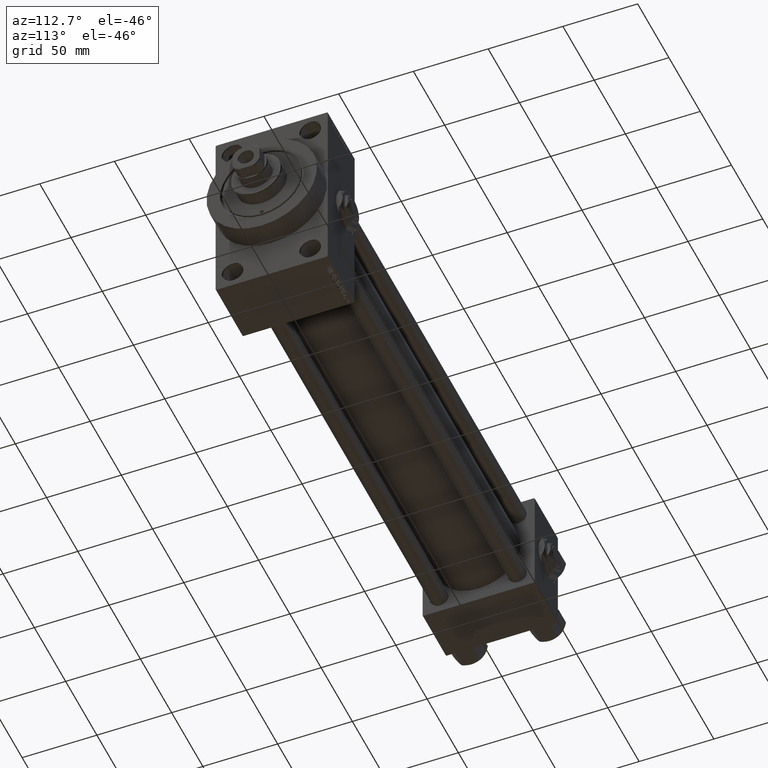
[diagram: clean part render]
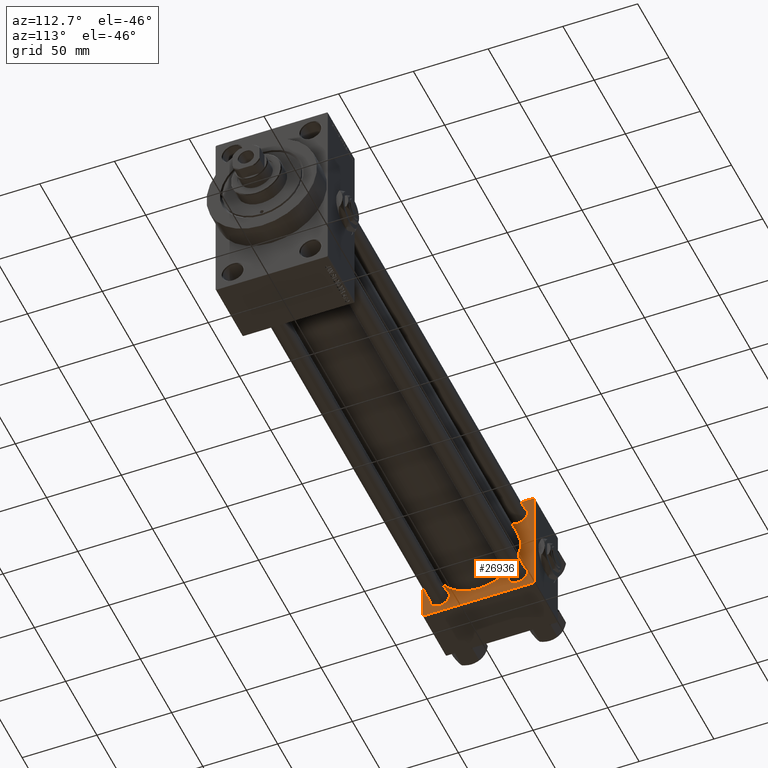
[diagram: same view with one face highlighted and labeled with its STEP entity id]
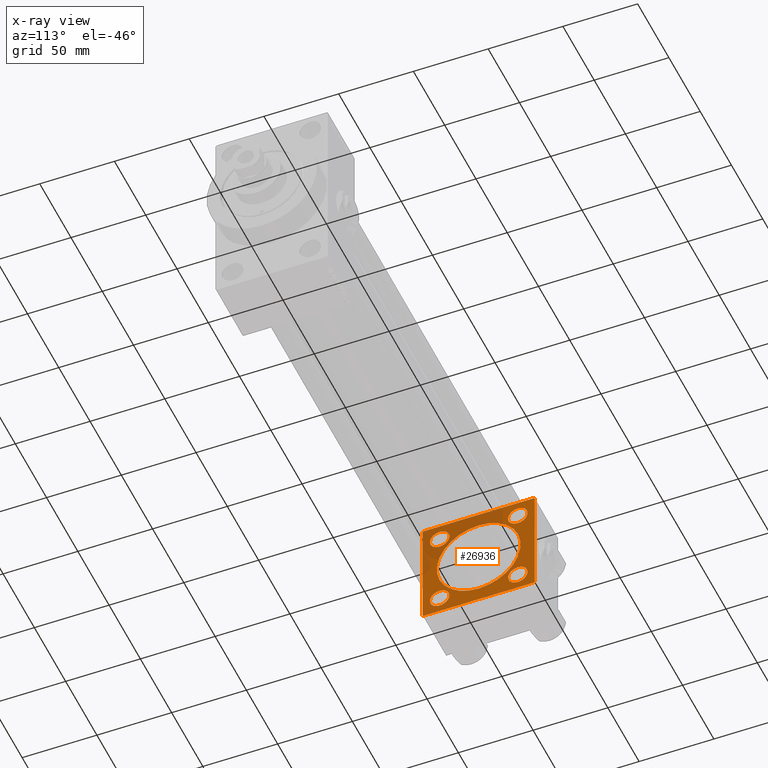
[diagram: x-ray of the same camera — body ghosted, the highlighted face saturated]
A machine part, auxiliary view. The second image highlights one B-rep face of the part: STEP entity #26936.
The next image is the same camera in x-ray: the body ghosted, the highlighted face saturated — about 29% of this face is hidden behind the body in this view.
In plain terms, the highlighted planar face has unit normal (-1, 0, 0).
Its self-contained STEP definition (entity closure, byte-faithful):
#57 = DIRECTION ( 'NONE',  ( 0.000000000000000000, 0.000000000000000000, 1.000000000000000000 ) ) ;
#893 = ORIENTED_EDGE ( 'NONE', *, *, #25360, .F. ) ;
#1860 = VERTEX_POINT ( 'NONE', #23642 ) ;
#1937 = DIRECTION ( 'NONE',  ( -1.000000000000000000, 0.000000000000000000, -0.000000000000000000 ) ) ;
#1989 = ORIENTED_EDGE ( 'NONE', *, *, #44793, .T. ) ;
#2544 = CARTESIAN_POINT ( 'NONE',  ( 37.00000000000000000, 37.49999999999999289, 37.50000000000000000 ) ) ;
#2865 = VERTEX_POINT ( 'NONE', #8529 ) ;
#3831 = EDGE_CURVE ( 'NONE', #30850, #9727, #9661, .T. ) ;
#4075 = CARTESIAN_POINT ( 'NONE',  ( 37.00000000000000000, -26.14999999999999147, 26.15000000000000924 ) ) ;
#4430 = VECTOR ( 'NONE', #40956, 1000.000000000000114 ) ;
#4454 = CIRCLE ( 'NONE', #14026, 6.500000000000002665 ) ;
#4487 = ORIENTED_EDGE ( 'NONE', *, *, #31526, .T. ) ;
#5422 = AXIS2_PLACEMENT_3D ( 'NONE', #22507, #33800, #30531 ) ;
#5819 = CARTESIAN_POINT ( 'NONE',  ( 37.00000000000000000, 26.14999999999999858, -26.15000000000000213 ) ) ;
#6105 = LINE ( 'NONE', #28153, #22586 ) ;
#6529 = CARTESIAN_POINT ( 'NONE',  ( 36.99999999999997868, -2.602085213965210642E-15, 0.000000000000000000 ) ) ;
#7320 = CARTESIAN_POINT ( 'NONE',  ( 37.00000000000000000, -26.14999999999999147, 19.65000000000005542 ) ) ;
#7388 = EDGE_CURVE ( 'NONE', #8666, #44347, #11158, .T. ) ;
#7998 = VERTEX_POINT ( 'NONE', #23467 ) ;
#8187 = VECTOR ( 'NONE', #25564, 1000.000000000000000 ) ;
#8285 = EDGE_CURVE ( 'NONE', #46001, #16302, #22895, .T. ) ;
#8529 = CARTESIAN_POINT ( 'NONE',  ( 37.00000000000000000, -26.14999999999999147, -32.64999999999995595 ) ) ;
#8666 = VERTEX_POINT ( 'NONE', #31454 ) ;
#9084 = DIRECTION ( 'NONE',  ( 0.000000000000000000, 0.000000000000000000, 1.000000000000000000 ) ) ;
#9298 = AXIS2_PLACEMENT_3D ( 'NONE', #24190, #17174, #32468 ) ;
#9494 = LINE ( 'NONE', #11155, #47018 ) ;
#9661 = CIRCLE ( 'NONE', #28041, 6.500000000000002665 ) ;
#9727 = VERTEX_POINT ( 'NONE', #24709 ) ;
#9748 = DIRECTION ( 'NONE',  ( 0.000000000000000000, 0.7071067811865524577, -0.7071067811865426878 ) ) ;
#10099 = EDGE_CURVE ( 'NONE', #1860, #16544, #19321, .T. ) ;
#10182 = VERTEX_POINT ( 'NONE', #29849 ) ;
#10382 = CARTESIAN_POINT ( 'NONE',  ( 37.00000000000000000, 37.49999999999999289, -36.99999999999998579 ) ) ;
#10647 = FACE_BOUND ( 'NONE', #42132, .T. ) ;
#10958 = VERTEX_POINT ( 'NONE', #16908 ) ;
#11155 = CARTESIAN_POINT ( 'NONE',  ( 37.00000000000000000, -37.00000000000002132, -37.50000000000000711 ) ) ;
#11158 = LINE ( 'NONE', #29701, #19323 ) ;
#11807 = ORIENTED_EDGE ( 'NONE', *, *, #19476, .T. ) ;
#13083 = ORIENTED_EDGE ( 'NONE', *, *, #29799, .T. ) ;
#13148 = LINE ( 'NONE', #15471, #48784 ) ;
#13193 = VERTEX_POINT ( 'NONE', #7320 ) ;
#13979 = EDGE_LOOP ( 'NONE', ( #15008, #893 ) ) ;
#14026 = AXIS2_PLACEMENT_3D ( 'NONE', #33334, #48602, #26299 ) ;
#14145 = PLANE ( 'NONE',  #29289 ) ;
#14146 = CARTESIAN_POINT ( 'NONE',  ( 37.00000000000000000, 37.49999999999999289, -36.99999999999998579 ) ) ;
#14268 = DIRECTION ( 'NONE',  ( 0.000000000000000000, 0.000000000000000000, 1.000000000000000000 ) ) ;
#14302 = DIRECTION ( 'NONE',  ( 0.000000000000000000, 0.000000000000000000, 1.000000000000000000 ) ) ;
#14341 = ORIENTED_EDGE ( 'NONE', *, *, #18483, .T. ) ;
#15007 = AXIS2_PLACEMENT_3D ( 'NONE', #4075, #30381, #45665 ) ;
#15008 = ORIENTED_EDGE ( 'NONE', *, *, #48408, .F. ) ;
#15129 = CARTESIAN_POINT ( 'NONE',  ( 37.00000000000000000, 0.000000000000000000, 0.000000000000000000 ) ) ;
#15275 = LINE ( 'NONE', #15523, #48468 ) ;
#15471 = CARTESIAN_POINT ( 'NONE',  ( 37.00000000000000000, 37.49999999999999289, -37.50000000000000000 ) ) ;
#15523 = CARTESIAN_POINT ( 'NONE',  ( 37.00000000000000000, -37.50000000000000711, 37.49999999999999289 ) ) ;
#15795 = CIRCLE ( 'NONE', #5422, 6.499999999999953815 ) ;
#15998 = ORIENTED_EDGE ( 'NONE', *, *, #10099, .T. ) ;
#16302 = VERTEX_POINT ( 'NONE', #10382 ) ;
#16310 = ORIENTED_EDGE ( 'NONE', *, *, #37795, .T. ) ;
#16544 = VERTEX_POINT ( 'NONE', #41487 ) ;
#16908 = CARTESIAN_POINT ( 'NONE',  ( 36.99999999999997868, 8.269258236473784371E-16, -28.00000000000000000 ) ) ;
#17174 = DIRECTION ( 'NONE',  ( -1.000000000000000000, 0.000000000000000000, -0.000000000000000000 ) ) ;
#17947 = VERTEX_POINT ( 'NONE', #19238 ) ;
#17954 = CARTESIAN_POINT ( 'NONE',  ( 37.00000000000000000, -37.50000000000000000, -37.00000000000003553 ) ) ;
#18483 = EDGE_CURVE ( 'NONE', #10182, #16302, #48464, .T. ) ;
#18779 = DIRECTION ( 'NONE',  ( 1.000000000000000000, -0.000000000000000000, 0.000000000000000000 ) ) ;
#18794 = CARTESIAN_POINT ( 'NONE',  ( 37.00000000000000000, 26.14999999999999858, 32.65000000000001279 ) ) ;
#18895 = DIRECTION ( 'NONE',  ( -1.000000000000000000, 0.000000000000000000, -0.000000000000000000 ) ) ;
#19078 = EDGE_LOOP ( 'NONE', ( #44584, #39039 ) ) ;
#19238 = CARTESIAN_POINT ( 'NONE',  ( 37.00000000000000000, -37.50000000000000711, 36.99999999999999289 ) ) ;
#19246 = AXIS2_PLACEMENT_3D ( 'NONE', #41117, #26326, #14302 ) ;
#19294 = CARTESIAN_POINT ( 'NONE',  ( 36.99999999999997868, -2.602085213965210642E-15, 0.000000000000000000 ) ) ;
#19321 = CIRCLE ( 'NONE', #47336, 6.500000000000002665 ) ;
#19323 = VECTOR ( 'NONE', #25693, 1000.000000000000000 ) ;
#19476 = EDGE_CURVE ( 'NONE', #2865, #7998, #30068, .T. ) ;
#19496 = CARTESIAN_POINT ( 'NONE',  ( 37.00000000000000000, -37.00000000000000711, 37.49999999999999289 ) ) ;
#19841 = EDGE_CURVE ( 'NONE', #17947, #30066, #15275, .T. ) ;
#20485 = LINE ( 'NONE', #31544, #23362 ) ;
#21122 = ORIENTED_EDGE ( 'NONE', *, *, #30980, .T. ) ;
#21186 = DIRECTION ( 'NONE',  ( 0.000000000000000000, 0.000000000000000000, 1.000000000000000000 ) ) ;
#21355 = DIRECTION ( 'NONE',  ( -0.000000000000000000, -0.7071067811865474617, -0.7071067811865474617 ) ) ;
#21495 = EDGE_LOOP ( 'NONE', ( #15998, #33377 ) ) ;
#21907 = FACE_BOUND ( 'NONE', #13979, .T. ) ;
#21973 = ORIENTED_EDGE ( 'NONE', *, *, #7388, .T. ) ;
#22507 = CARTESIAN_POINT ( 'NONE',  ( 37.00000000000000000, -26.14999999999999147, 26.15000000000000924 ) ) ;
#22586 = VECTOR ( 'NONE', #21355, 1000.000000000000114 ) ;
#22641 = EDGE_CURVE ( 'NONE', #16544, #1860, #4454, .T. ) ;
#22895 = LINE ( 'NONE', #2544, #8187 ) ;
#23056 = DIRECTION ( 'NONE',  ( -1.000000000000000000, 0.000000000000000000, -0.000000000000000000 ) ) ;
#23362 = VECTOR ( 'NONE', #32034, 1000.000000000000114 ) ;
#23467 = CARTESIAN_POINT ( 'NONE',  ( 37.00000000000000000, -26.14999999999999147, -19.65000000000006253 ) ) ;
#23642 = CARTESIAN_POINT ( 'NONE',  ( 37.00000000000000000, 26.14999999999999858, -32.65000000000000568 ) ) ;
#23729 = DIRECTION ( 'NONE',  ( 0.000000000000000000, -1.000000000000000000, -9.251858538542972814E-17 ) ) ;
#24190 = CARTESIAN_POINT ( 'NONE',  ( 37.00000000000000000, 26.14999999999999858, 26.15000000000000213 ) ) ;
#24709 = CARTESIAN_POINT ( 'NONE',  ( 37.00000000000000000, 26.14999999999999858, 19.64999999999999858 ) ) ;
#24777 = CARTESIAN_POINT ( 'NONE',  ( 37.00000000000000000, -26.14999999999999147, 32.64999999999996305 ) ) ;
#25316 = CIRCLE ( 'NONE', #30153, 28.00000000000000000 ) ;
#25360 = EDGE_CURVE ( 'NONE', #10958, #43973, #25316, .T. ) ;
#25432 = CARTESIAN_POINT ( 'NONE',  ( 37.00000000000000000, 37.49999999999999289, 37.00000000000000000 ) ) ;
#25564 = DIRECTION ( 'NONE',  ( 0.000000000000000000, 0.000000000000000000, -1.000000000000000000 ) ) ;
#25693 = DIRECTION ( 'NONE',  ( 0.000000000000000000, -1.000000000000000000, -9.251858538542971581E-17 ) ) ;
#25923 = DIRECTION ( 'NONE',  ( -0.000000000000000000, 0.000000000000000000, 1.000000000000000000 ) ) ;
#26105 = CIRCLE ( 'NONE', #9298, 6.500000000000002665 ) ;
#26299 = DIRECTION ( 'NONE',  ( 0.000000000000000000, 0.000000000000000000, 1.000000000000000000 ) ) ;
#26326 = DIRECTION ( 'NONE',  ( -1.000000000000000000, 0.000000000000000000, -0.000000000000000000 ) ) ;
#26932 = EDGE_CURVE ( 'NONE', #9727, #30850, #26105, .T. ) ;
#26936 = ADVANCED_FACE ( 'NONE', ( #47735, #41693, #10647, #44713, #21907, #49447 ), #14145, .F. ) ;
#28041 = AXIS2_PLACEMENT_3D ( 'NONE', #34359, #23056, #57 ) ;
#28153 = CARTESIAN_POINT ( 'NONE',  ( 37.00000000000000000, -37.50000000000000711, 36.99999999999999289 ) ) ;
#29143 = CIRCLE ( 'NONE', #35552, 28.00000000000000000 ) ;
#29289 = AXIS2_PLACEMENT_3D ( 'NONE', #15129, #18895, #25923 ) ;
#29701 = CARTESIAN_POINT ( 'NONE',  ( 37.00000000000000000, 37.49999999999999289, 37.50000000000000000 ) ) ;
#29799 = EDGE_CURVE ( 'NONE', #39164, #13193, #15795, .T. ) ;
#29849 = CARTESIAN_POINT ( 'NONE',  ( 37.00000000000000000, 36.99999999999997868, -37.50000000000000000 ) ) ;
#30066 = VERTEX_POINT ( 'NONE', #17954 ) ;
#30068 = CIRCLE ( 'NONE', #44472, 6.499999999999946709 ) ;
#30153 = AXIS2_PLACEMENT_3D ( 'NONE', #19294, #41866, #49134 ) ;
#30381 = DIRECTION ( 'NONE',  ( -1.000000000000000000, 0.000000000000000000, -0.000000000000000000 ) ) ;
#30531 = DIRECTION ( 'NONE',  ( 0.000000000000000000, 0.000000000000000000, 1.000000000000000000 ) ) ;
#30850 = VERTEX_POINT ( 'NONE', #18794 ) ;
#30980 = EDGE_CURVE ( 'NONE', #30066, #48496, #9494, .T. ) ;
#31454 = CARTESIAN_POINT ( 'NONE',  ( 37.00000000000000000, 36.99999999999999289, 37.50000000000000000 ) ) ;
#31526 = EDGE_CURVE ( 'NONE', #13193, #39164, #40621, .T. ) ;
#31544 = CARTESIAN_POINT ( 'NONE',  ( 37.00000000000000000, 36.99999999999999289, 37.50000000000000000 ) ) ;
#32034 = DIRECTION ( 'NONE',  ( 0.000000000000000000, -0.7071067811865474617, 0.7071067811865474617 ) ) ;
#32244 = CARTESIAN_POINT ( 'NONE',  ( 37.00000000000000000, -26.14999999999999147, -26.15000000000000924 ) ) ;
#32468 = DIRECTION ( 'NONE',  ( 0.000000000000000000, 0.000000000000000000, 1.000000000000000000 ) ) ;
#32964 = CARTESIAN_POINT ( 'NONE',  ( 36.99999999999997868, -2.602085213965210642E-15, 28.00000000000000000 ) ) ;
#33334 = CARTESIAN_POINT ( 'NONE',  ( 37.00000000000000000, 26.14999999999999858, -26.15000000000000213 ) ) ;
#33377 = ORIENTED_EDGE ( 'NONE', *, *, #22641, .T. ) ;
#33640 = CIRCLE ( 'NONE', #19246, 6.499999999999946709 ) ;
#33800 = DIRECTION ( 'NONE',  ( -1.000000000000000000, 0.000000000000000000, -0.000000000000000000 ) ) ;
#34093 = DIRECTION ( 'NONE',  ( 0.000000000000000000, 9.251858538542971581E-17, -1.000000000000000000 ) ) ;
#34359 = CARTESIAN_POINT ( 'NONE',  ( 37.00000000000000000, 26.14999999999999858, 26.15000000000000213 ) ) ;
#35552 = AXIS2_PLACEMENT_3D ( 'NONE', #6529, #18779, #14268 ) ;
#36486 = CARTESIAN_POINT ( 'NONE',  ( 37.00000000000000000, -37.00000000000002132, -37.50000000000000711 ) ) ;
#37795 = EDGE_CURVE ( 'NONE', #7998, #2865, #33640, .T. ) ;
#39039 = ORIENTED_EDGE ( 'NONE', *, *, #3831, .T. ) ;
#39164 = VERTEX_POINT ( 'NONE', #24777 ) ;
#39329 = EDGE_CURVE ( 'NONE', #10182, #48496, #13148, .T. ) ;
#40621 = CIRCLE ( 'NONE', #15007, 6.499999999999953815 ) ;
#40956 = DIRECTION ( 'NONE',  ( -0.000000000000000000, 0.7071067811865474617, 0.7071067811865474617 ) ) ;
#41117 = CARTESIAN_POINT ( 'NONE',  ( 37.00000000000000000, -26.14999999999999147, -26.15000000000000924 ) ) ;
#41395 = EDGE_LOOP ( 'NONE', ( #47177, #14341, #43409, #1989, #21973, #41503, #47404, #21122 ) ) ;
#41487 = CARTESIAN_POINT ( 'NONE',  ( 37.00000000000000000, 26.14999999999999858, -19.65000000000000213 ) ) ;
#41503 = ORIENTED_EDGE ( 'NONE', *, *, #44978, .T. ) ;
#41693 = FACE_BOUND ( 'NONE', #21495, .T. ) ;
#41866 = DIRECTION ( 'NONE',  ( 1.000000000000000000, -0.000000000000000000, 0.000000000000000000 ) ) ;
#42132 = EDGE_LOOP ( 'NONE', ( #4487, #13083 ) ) ;
#43402 = DIRECTION ( 'NONE',  ( -1.000000000000000000, 0.000000000000000000, -0.000000000000000000 ) ) ;
#43409 = ORIENTED_EDGE ( 'NONE', *, *, #8285, .F. ) ;
#43973 = VERTEX_POINT ( 'NONE', #32964 ) ;
#44347 = VERTEX_POINT ( 'NONE', #19496 ) ;
#44472 = AXIS2_PLACEMENT_3D ( 'NONE', #32244, #1937, #21186 ) ;
#44584 = ORIENTED_EDGE ( 'NONE', *, *, #26932, .T. ) ;
#44713 = FACE_BOUND ( 'NONE', #19078, .T. ) ;
#44793 = EDGE_CURVE ( 'NONE', #46001, #8666, #20485, .T. ) ;
#44978 = EDGE_CURVE ( 'NONE', #44347, #17947, #6105, .T. ) ;
#45665 = DIRECTION ( 'NONE',  ( 0.000000000000000000, 0.000000000000000000, 1.000000000000000000 ) ) ;
#45899 = EDGE_LOOP ( 'NONE', ( #11807, #16310 ) ) ;
#46001 = VERTEX_POINT ( 'NONE', #25432 ) ;
#47018 = VECTOR ( 'NONE', #9748, 1000.000000000000000 ) ;
#47177 = ORIENTED_EDGE ( 'NONE', *, *, #39329, .F. ) ;
#47336 = AXIS2_PLACEMENT_3D ( 'NONE', #5819, #43402, #9084 ) ;
#47404 = ORIENTED_EDGE ( 'NONE', *, *, #19841, .T. ) ;
#47735 = FACE_BOUND ( 'NONE', #45899, .T. ) ;
#48408 = EDGE_CURVE ( 'NONE', #43973, #10958, #29143, .T. ) ;
#48464 = LINE ( 'NONE', #14146, #4430 ) ;
#48468 = VECTOR ( 'NONE', #34093, 1000.000000000000000 ) ;
#48496 = VERTEX_POINT ( 'NONE', #36486 ) ;
#48602 = DIRECTION ( 'NONE',  ( -1.000000000000000000, 0.000000000000000000, -0.000000000000000000 ) ) ;
#48784 = VECTOR ( 'NONE', #23729, 1000.000000000000000 ) ;
#49134 = DIRECTION ( 'NONE',  ( 0.000000000000000000, 0.000000000000000000, 1.000000000000000000 ) ) ;
#49447 = FACE_OUTER_BOUND ( 'NONE', #41395, .T. ) ;